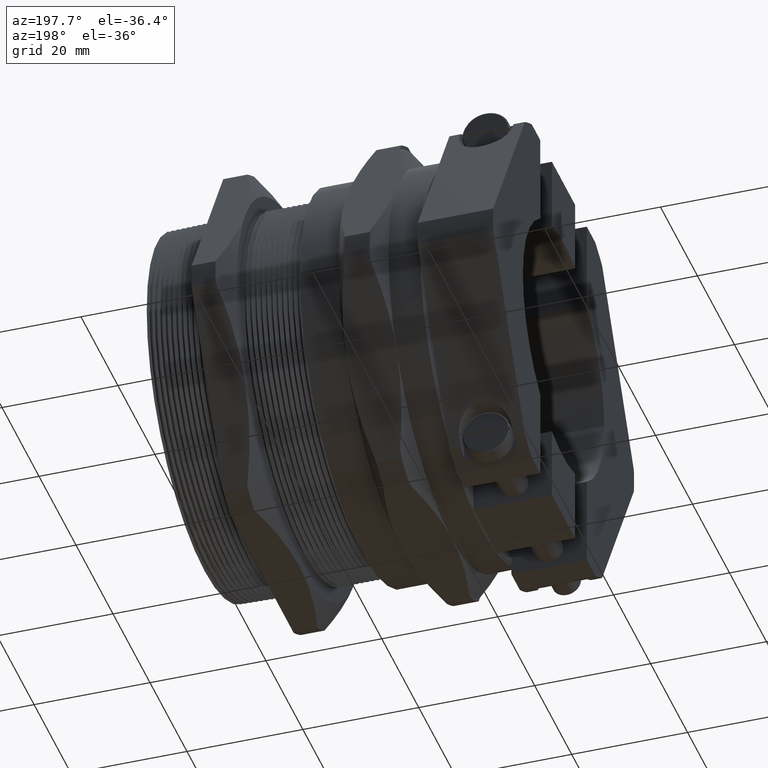
[diagram: clean part render]
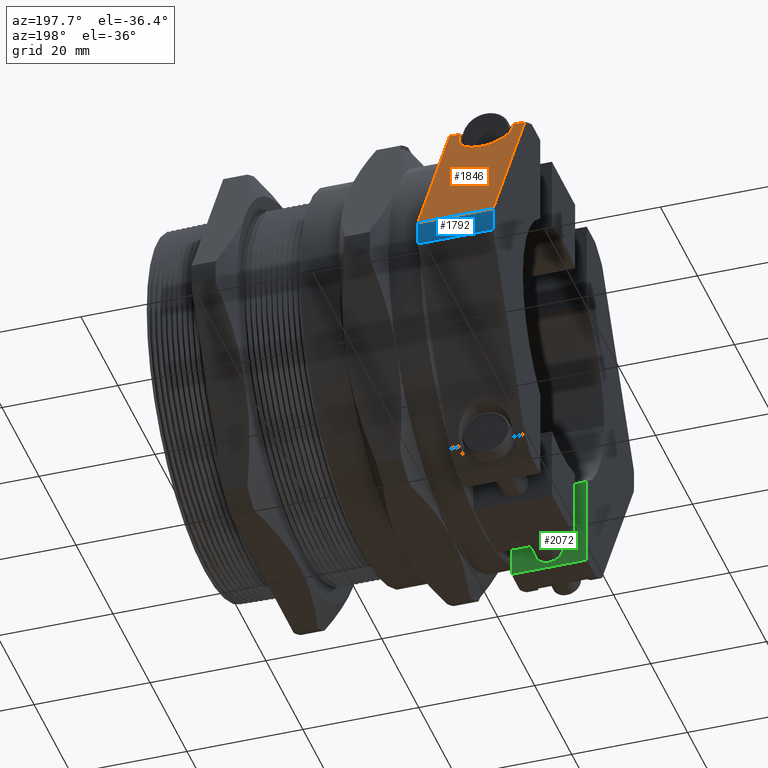
[diagram: same view with three faces highlighted in distinct colors, each labeled with its STEP entity id]
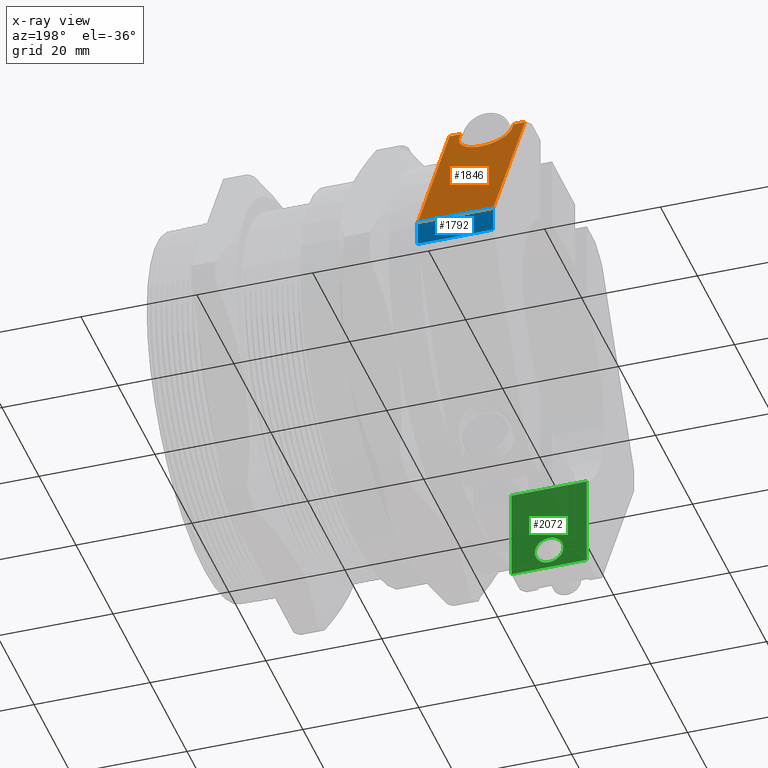
[diagram: x-ray of the same camera — body ghosted, the three highlighted faces saturated]
A machine part, auxiliary view with three faces highlighted in distinct colors.
The next image is the same camera in x-ray (body ghosted, the three faces saturated) — at least one of them is partly hidden behind the body in this view.
Their STEP definitions:

[orange] entity #1846 — the highlighted planar face has unit normal (0, 0.866, 0.5).
#1693 = VERTEX_POINT ( 'NONE', #6400 ) ;
#1697 = VERTEX_POINT ( 'NONE', #6452 ) ;
#1699 = EDGE_CURVE ( 'NONE', #1700, #1697, #6451, .T. ) ;
#1700 = VERTEX_POINT ( 'NONE', #6447 ) ;
#1754 = EDGE_CURVE ( 'NONE', #1693, #1755, #6543, .T. ) ;
#1755 = VERTEX_POINT ( 'NONE', #6539 ) ;
#1785 = VERTEX_POINT ( 'NONE', #6604 ) ;
#1787 = EDGE_CURVE ( 'NONE', #1693, #1785, #6603, .T. ) ;
#1798 = EDGE_CURVE ( 'NONE', #1755, #1697, #6644, .T. ) ;
#1828 = ORIENTED_EDGE ( 'NONE', *, *, #1754, .F. ) ;
#1829 = ORIENTED_EDGE ( 'NONE', *, *, #1787, .T. ) ;
#1830 = ORIENTED_EDGE ( 'NONE', *, *, #1831, .T. ) ;
#1831 = EDGE_CURVE ( 'NONE', #1785, #1832, #6651, .T. ) ;
#1832 = VERTEX_POINT ( 'NONE', #6647 ) ;
#1833 = ORIENTED_EDGE ( 'NONE', *, *, #1834, .T. ) ;
#1834 = EDGE_CURVE ( 'NONE', #1832, #1850, #6695, .T. ) ;
#1846 = ADVANCED_FACE ( 'NONE', ( #6722 ), #6680, .T. ) ;
#1847 = EDGE_LOOP ( 'NONE', ( #1848, #1851, #1852, #1853, #1828, #1829, #1830, #1833 ) ) ;
#1848 = ORIENTED_EDGE ( 'NONE', *, *, #1849, .T. ) ;
#1849 = EDGE_CURVE ( 'NONE', #1850, #1858, #6717, .T. ) ;
#1850 = VERTEX_POINT ( 'NONE', #6713 ) ;
#1851 = ORIENTED_EDGE ( 'NONE', *, *, #1857, .T. ) ;
#1852 = ORIENTED_EDGE ( 'NONE', *, *, #1699, .T. ) ;
#1853 = ORIENTED_EDGE ( 'NONE', *, *, #1798, .F. ) ;
#1857 = EDGE_CURVE ( 'NONE', #1858, #1700, #6710, .T. ) ;
#1858 = VERTEX_POINT ( 'NONE', #6702 ) ;
#6400 = CARTESIAN_POINT ( 'NONE',  ( -1.485749999999999900, 0.8225388993649326300, 1.255320835098154000 ) ) ;
#6447 = CARTESIAN_POINT ( 'NONE',  ( -0.9732499999999998400, 0.8225388993649327400, 1.255320835098153700 ) ) ;
#6448 = DIRECTION ( 'NONE',  ( 1.624110638052554400E-019, 0.5000000000000002200, -0.8660254037844384900 ) ) ;
#6449 = VECTOR ( 'NONE', #6448, 39.37007874015748900 ) ;
#6450 = CARTESIAN_POINT ( 'NONE',  ( -0.9732499999999998400, 1.376724041071148300, 0.2954440128632308500 ) ) ;
#6451 = LINE ( 'NONE', #6450, #6449 ) ;
#6452 = CARTESIAN_POINT ( 'NONE',  ( -0.9732499999999998400, 1.498409182777363300, 0.08467916490184758400 ) ) ;
#6539 = CARTESIAN_POINT ( 'NONE',  ( -1.485749999999999900, 1.498409182777363300, 0.08467916490184890200 ) ) ;
#6540 = DIRECTION ( 'NONE',  ( 1.624110638052554400E-019, 0.5000000000000002200, -0.8660254037844384900 ) ) ;
#6541 = VECTOR ( 'NONE', #6540, 39.37007874015748900 ) ;
#6542 = CARTESIAN_POINT ( 'NONE',  ( -1.485749999999999900, 1.498409182777363300, 0.08467916490184794500 ) ) ;
#6543 = LINE ( 'NONE', #6542, #6541 ) ;
#6600 = DIRECTION ( 'NONE',  ( 1.000000000000000000, -3.248221276105107800E-019, 0.0000000000000000000 ) ) ;
#6601 = VECTOR ( 'NONE', #6600, 39.37007874015748100 ) ;
#6602 = CARTESIAN_POINT ( 'NONE',  ( -5.773102463107272300, 0.8225388993649327400, 1.255320835098153700 ) ) ;
#6603 = LINE ( 'NONE', #6602, #6601 ) ;
#6604 = CARTESIAN_POINT ( 'NONE',  ( -1.408874999999999900, 0.8225388993649324100, 1.255320835098153300 ) ) ;
#6641 = DIRECTION ( 'NONE',  ( 1.000000000000000000, -3.248221276105107800E-019, 0.0000000000000000000 ) ) ;
#6642 = VECTOR ( 'NONE', #6641, 39.37007874015748100 ) ;
#6643 = CARTESIAN_POINT ( 'NONE',  ( -5.773102463107272300, 1.498409182777363300, 0.08467916490184758400 ) ) ;
#6644 = LINE ( 'NONE', #6643, #6642 ) ;
#6647 = CARTESIAN_POINT ( 'NONE',  ( -1.408874999999999900, 0.8525538975033479800, 1.203333333333333400 ) ) ;
#6648 = DIRECTION ( 'NONE',  ( -1.731109581798148400E-015, 0.4999999999999996100, -0.8660254037844388200 ) ) ;
#6649 = VECTOR ( 'NONE', #6648, 39.37007874015748100 ) ;
#6650 = CARTESIAN_POINT ( 'NONE',  ( -1.408874999999999900, 0.8225388993649362900, 1.255320835098146800 ) ) ;
#6651 = LINE ( 'NONE', #6650, #6649 ) ;
#6680 = PLANE ( 'NONE',  #6721 ) ;
#6691 = CARTESIAN_POINT ( 'NONE',  ( -1.050124999999999800, 0.8525538975033475400, 1.203333333333333100 ) ) ;
#6692 = CARTESIAN_POINT ( 'NONE',  ( -1.050124999999999800, 1.059678306575125400, 0.8445833333333334600 ) ) ;
#6693 = CARTESIAN_POINT ( 'NONE',  ( -1.408874999999999700, 1.059678306575125400, 0.8445833333333332400 ) ) ;
#6694 = CARTESIAN_POINT ( 'NONE',  ( -1.408874999999999900, 0.8525538975033479800, 1.203333333333333400 ) ) ;
#6695 =( BOUNDED_CURVE ( )  B_SPLINE_CURVE ( 3, ( #6694, #6693, #6692, #6691 ),
 .UNSPECIFIED., .F., .T. ) 
 B_SPLINE_CURVE_WITH_KNOTS ( ( 4, 4 ),
 ( 1.570796326794897000, 4.712388980384689700 ),
 .UNSPECIFIED. ) 
 CURVE ( )  GEOMETRIC_REPRESENTATION_ITEM ( )  RATIONAL_B_SPLINE_CURVE ( ( 1.000000000000000000, 0.3333333333333334800, 0.3333333333333334800, 1.000000000000000000 ) ) 
 REPRESENTATION_ITEM ( '' )  );
#6702 = CARTESIAN_POINT ( 'NONE',  ( -1.050124999999999800, 0.8225388993649324100, 1.255320835098153300 ) ) ;
#6703 = DIRECTION ( 'NONE',  ( 1.000000000000000000, -3.248221276105107800E-019, 0.0000000000000000000 ) ) ;
#6704 = VECTOR ( 'NONE', #6703, 39.37007874015748100 ) ;
#6705 = CARTESIAN_POINT ( 'NONE',  ( -5.773102463107272300, 0.8225388993649327400, 1.255320835098153700 ) ) ;
#6710 = LINE ( 'NONE', #6705, #6704 ) ;
#6713 = CARTESIAN_POINT ( 'NONE',  ( -1.050124999999999800, 0.8525538975033475400, 1.203333333333333100 ) ) ;
#6714 = DIRECTION ( 'NONE',  ( -1.731109581798148400E-015, -0.4999999999999996100, 0.8660254037844388200 ) ) ;
#6715 = VECTOR ( 'NONE', #6714, 39.37007874015748100 ) ;
#6716 = CARTESIAN_POINT ( 'NONE',  ( -1.050124999999999800, 0.8225388993649284100, 1.255320835098160400 ) ) ;
#6717 = LINE ( 'NONE', #6716, #6715 ) ;
#6718 = DIRECTION ( 'NONE',  ( 0.0000000000000000000, -0.5000000000000002200, 0.8660254037844384900 ) ) ;
#6719 = DIRECTION ( 'NONE',  ( 2.813042142220130900E-019, 0.8660254037844386000, 0.5000000000000003300 ) ) ;
#6720 = CARTESIAN_POINT ( 'NONE',  ( -5.773102463107272300, 1.498409182777363300, 0.08467916490184794500 ) ) ;
#6721 = AXIS2_PLACEMENT_3D ( 'NONE', #6720, #6719, #6718 ) ;
#6722 = FACE_OUTER_BOUND ( 'NONE', #1847, .T. ) ;

[blue] entity #1792 — the highlighted cylindrical surface (partial cylindrical patch) has radius 38.1203 mm, axis along (-1, 0, 0).
#1696 = EDGE_CURVE ( 'NONE', #1697, #1724, #6457, .T. ) ;
#1697 = VERTEX_POINT ( 'NONE', #6452 ) ;
#1724 = VERTEX_POINT ( 'NONE', #6464 ) ;
#1755 = VERTEX_POINT ( 'NONE', #6539 ) ;
#1757 = EDGE_CURVE ( 'NONE', #1755, #1758, #6538, .T. ) ;
#1758 = VERTEX_POINT ( 'NONE', #6533 ) ;
#1792 = ADVANCED_FACE ( 'NONE', ( #6591 ), #6590, .T. ) ;
#1793 = EDGE_LOOP ( 'NONE', ( #1794, #1796, #1797, #1799 ) ) ;
#1794 = ORIENTED_EDGE ( 'NONE', *, *, #1795, .F. ) ;
#1795 = EDGE_CURVE ( 'NONE', #1758, #1724, #6332, .T. ) ;
#1796 = ORIENTED_EDGE ( 'NONE', *, *, #1757, .F. ) ;
#1797 = ORIENTED_EDGE ( 'NONE', *, *, #1798, .T. ) ;
#1798 = EDGE_CURVE ( 'NONE', #1755, #1697, #6644, .T. ) ;
#1799 = ORIENTED_EDGE ( 'NONE', *, *, #1696, .T. ) ;
#5822 = CARTESIAN_POINT ( 'NONE',  ( -5.773102463107272300, 1.498409182777363300, -0.08467916490184590500 ) ) ;
#6332 = LINE ( 'NONE', #5822, #6646 ) ;
#6452 = CARTESIAN_POINT ( 'NONE',  ( -0.9732499999999998400, 1.498409182777363300, 0.08467916490184758400 ) ) ;
#6453 = DIRECTION ( 'NONE',  ( 0.0000000000000000000, -1.000000000000000000, 0.0000000000000000000 ) ) ;
#6454 = DIRECTION ( 'NONE',  ( -1.000000000000000000, 3.248221276105107800E-019, 0.0000000000000000000 ) ) ;
#6455 = CARTESIAN_POINT ( 'NONE',  ( -0.9732499999999998400, 1.358250442850350200E-018, 0.0000000000000000000 ) ) ;
#6456 = AXIS2_PLACEMENT_3D ( 'NONE', #6455, #6454, #6453 ) ;
#6457 = CIRCLE ( 'NONE', #6456, 1.500799999999999900 ) ;
#6464 = CARTESIAN_POINT ( 'NONE',  ( -0.9732499999999998400, 1.498409182777363300, -0.08467916490184590500 ) ) ;
#6533 = CARTESIAN_POINT ( 'NONE',  ( -1.485749999999999900, 1.498409182777363300, -0.08467916490184583500 ) ) ;
#6534 = DIRECTION ( 'NONE',  ( 0.0000000000000000000, -1.000000000000000000, 0.0000000000000000000 ) ) ;
#6535 = DIRECTION ( 'NONE',  ( -1.000000000000000000, 3.248221276105107800E-019, 0.0000000000000000000 ) ) ;
#6536 = CARTESIAN_POINT ( 'NONE',  ( -1.485749999999999900, 1.524721783250737200E-018, 0.0000000000000000000 ) ) ;
#6537 = AXIS2_PLACEMENT_3D ( 'NONE', #6536, #6535, #6534 ) ;
#6538 = CIRCLE ( 'NONE', #6537, 1.500799999999999900 ) ;
#6539 = CARTESIAN_POINT ( 'NONE',  ( -1.485749999999999900, 1.498409182777363300, 0.08467916490184890200 ) ) ;
#6586 = DIRECTION ( 'NONE',  ( 0.0000000000000000000, -1.000000000000000000, 0.0000000000000000000 ) ) ;
#6587 = DIRECTION ( 'NONE',  ( -1.000000000000000000, 3.248221276105107800E-019, 0.0000000000000000000 ) ) ;
#6588 = CARTESIAN_POINT ( 'NONE',  ( -3.208270676691729500, 2.084234614306841300E-018, 0.0000000000000000000 ) ) ;
#6589 = AXIS2_PLACEMENT_3D ( 'NONE', #6588, #6587, #6586 ) ;
#6590 = CYLINDRICAL_SURFACE ( 'NONE', #6589, 1.500799999999999900 ) ;
#6591 = FACE_OUTER_BOUND ( 'NONE', #1793, .T. ) ;
#6641 = DIRECTION ( 'NONE',  ( 1.000000000000000000, -3.248221276105107800E-019, 0.0000000000000000000 ) ) ;
#6642 = VECTOR ( 'NONE', #6641, 39.37007874015748100 ) ;
#6643 = CARTESIAN_POINT ( 'NONE',  ( -5.773102463107272300, 1.498409182777363300, 0.08467916490184758400 ) ) ;
#6644 = LINE ( 'NONE', #6643, #6642 ) ;
#6645 = DIRECTION ( 'NONE',  ( 1.000000000000000000, -3.248221276105107800E-019, 0.0000000000000000000 ) ) ;
#6646 = VECTOR ( 'NONE', #6645, 39.37007874015748100 ) ;

[green] entity #2072 — the highlighted planar face has unit normal (-0, -1, 0).
#106 = EDGE_LOOP ( 'NONE', ( #2136, #2137, #2138, #2139 ) ) ;
#192 = EDGE_CURVE ( 'NONE', #8671, #8333, #3637, .T. ) ;
#2038 = VERTEX_POINT ( 'NONE', #6971 ) ;
#2040 = EDGE_CURVE ( 'NONE', #2038, #2041, #6970, .T. ) ;
#2041 = VERTEX_POINT ( 'NONE', #6966 ) ;
#2052 = EDGE_CURVE ( 'NONE', #2053, #2054, #7007, .T. ) ;
#2053 = VERTEX_POINT ( 'NONE', #7003 ) ;
#2054 = VERTEX_POINT ( 'NONE', #7002 ) ;
#2072 = ADVANCED_FACE ( 'NONE', ( #7036, #7035 ), #7033, .F. ) ;
#2073 = EDGE_LOOP ( 'NONE', ( #2074, #2076 ) ) ;
#2074 = ORIENTED_EDGE ( 'NONE', *, *, #2075, .T. ) ;
#2075 = EDGE_CURVE ( 'NONE', #8333, #8671, #7034, .T. ) ;
#2076 = ORIENTED_EDGE ( 'NONE', *, *, #192, .T. ) ;
#2083 = EDGE_CURVE ( 'NONE', #2038, #2053, #7082, .T. ) ;
#2094 = EDGE_CURVE ( 'NONE', #2054, #2041, #7070, .T. ) ;
#2136 = ORIENTED_EDGE ( 'NONE', *, *, #2083, .T. ) ;
#2137 = ORIENTED_EDGE ( 'NONE', *, *, #2052, .T. ) ;
#2138 = ORIENTED_EDGE ( 'NONE', *, *, #2094, .T. ) ;
#2139 = ORIENTED_EDGE ( 'NONE', *, *, #2040, .F. ) ;
#3633 = DIRECTION ( 'NONE',  ( 1.000000000000000000, 0.0000000000000000000, 0.0000000000000000000 ) ) ;
#3634 = DIRECTION ( 'NONE',  ( -3.248221276105108200E-019, -1.000000000000000000, 0.0000000000000000000 ) ) ;
#3635 = CARTESIAN_POINT ( 'NONE',  ( -1.229499999999999800, -0.4960000000000000000, -1.203333333333333100 ) ) ;
#3636 = AXIS2_PLACEMENT_3D ( 'NONE', #3635, #3634, #3633 ) ;
#3637 = CIRCLE ( 'NONE', #3636, 0.09686250000000006000 ) ;
#6966 = CARTESIAN_POINT ( 'NONE',  ( -1.485749999999999900, -0.4960000000000000000, -0.7086670586389632900 ) ) ;
#6967 = DIRECTION ( 'NONE',  ( -1.000000000000000000, 3.248221276105107800E-019, 0.0000000000000000000 ) ) ;
#6968 = VECTOR ( 'NONE', #6967, 39.37007874015748100 ) ;
#6969 = CARTESIAN_POINT ( 'NONE',  ( -3.208270676691729500, -0.4960000000000000000, -0.7086670586389632900 ) ) ;
#6970 = LINE ( 'NONE', #6969, #6968 ) ;
#6971 = CARTESIAN_POINT ( 'NONE',  ( -0.9732499999999998400, -0.4960000000000000000, -0.7086670586389632900 ) ) ;
#7002 = CARTESIAN_POINT ( 'NONE',  ( -1.485749999999999900, -0.4960000000000000000, -1.339999999999999900 ) ) ;
#7003 = CARTESIAN_POINT ( 'NONE',  ( -0.9732499999999998400, -0.4960000000000001100, -1.339999999999999900 ) ) ;
#7004 = DIRECTION ( 'NONE',  ( -1.000000000000000000, 3.248221276105108200E-019, 0.0000000000000000000 ) ) ;
#7005 = VECTOR ( 'NONE', #7004, 39.37007874015748100 ) ;
#7006 = CARTESIAN_POINT ( 'NONE',  ( 1.884452573746960400, -0.4960000000000000000, -1.339999999999999900 ) ) ;
#7007 = LINE ( 'NONE', #7006, #7005 ) ;
#7029 = DIRECTION ( 'NONE',  ( 1.000000000000000000, -3.248221276105108200E-019, 0.0000000000000000000 ) ) ;
#7030 = DIRECTION ( 'NONE',  ( -3.248221276105108200E-019, -1.000000000000000000, 0.0000000000000000000 ) ) ;
#7031 = CARTESIAN_POINT ( 'NONE',  ( 1.884452573746960400, -0.4960000000000000000, -1.339999999999999900 ) ) ;
#7032 = AXIS2_PLACEMENT_3D ( 'NONE', #7031, #7030, #7029 ) ;
#7033 = PLANE ( 'NONE',  #7032 ) ;
#7034 = CIRCLE ( 'NONE', #7092, 0.09686250000000006000 ) ;
#7035 = FACE_OUTER_BOUND ( 'NONE', #106, .T. ) ;
#7036 = FACE_BOUND ( 'NONE', #2073, .T. ) ;
#7067 = DIRECTION ( 'NONE',  ( 0.0000000000000000000, 0.0000000000000000000, 1.000000000000000000 ) ) ;
#7068 = VECTOR ( 'NONE', #7067, 39.37007874015748100 ) ;
#7069 = CARTESIAN_POINT ( 'NONE',  ( -1.485749999999999900, -0.4960000000000000000, -1.339999999999999900 ) ) ;
#7070 = LINE ( 'NONE', #7069, #7068 ) ;
#7079 = DIRECTION ( 'NONE',  ( 0.0000000000000000000, 0.0000000000000000000, -1.000000000000000000 ) ) ;
#7080 = VECTOR ( 'NONE', #7079, 39.37007874015748100 ) ;
#7081 = CARTESIAN_POINT ( 'NONE',  ( -0.9732499999999998400, -0.4960000000000000000, -1.339999999999999900 ) ) ;
#7082 = LINE ( 'NONE', #7081, #7080 ) ;
#7089 = DIRECTION ( 'NONE',  ( 1.000000000000000000, 0.0000000000000000000, 0.0000000000000000000 ) ) ;
#7090 = DIRECTION ( 'NONE',  ( -3.248221276105108200E-019, -1.000000000000000000, 0.0000000000000000000 ) ) ;
#7091 = CARTESIAN_POINT ( 'NONE',  ( -1.229499999999999800, -0.4960000000000000000, -1.203333333333333100 ) ) ;
#7092 = AXIS2_PLACEMENT_3D ( 'NONE', #7091, #7090, #7089 ) ;
#8333 = VERTEX_POINT ( 'NONE', #9186 ) ;
#8671 = VERTEX_POINT ( 'NONE', #9333 ) ;
#9186 = CARTESIAN_POINT ( 'NONE',  ( -1.326362499999999900, -0.4960000000000000000, -1.203333333333333100 ) ) ;
#9333 = CARTESIAN_POINT ( 'NONE',  ( -1.132637499999999700, -0.4960000000000000000, -1.203333333333333100 ) ) ;